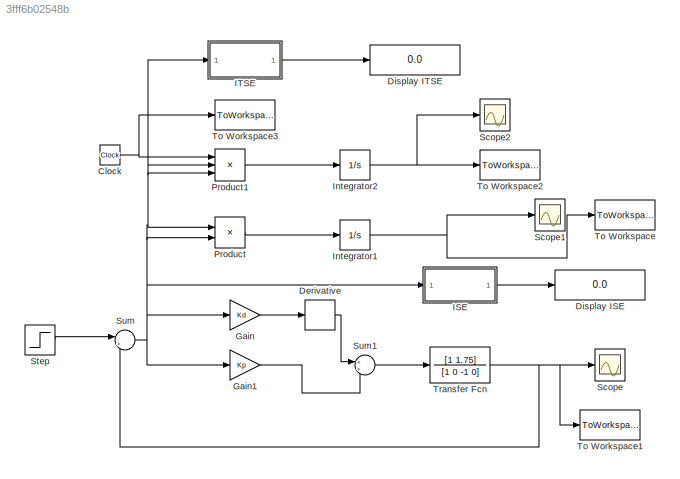
MODEL slx_3fff6b02548b
KIND model
BLOCK [Clock] Clock
BLOCK [Derivative] Derivative
BLOCK [Display] Display ISE
  Decimation = 1
  Lockdown = off
  Ports = [1]
BLOCK [Display] Display ITSE
  Decimation = 1
  Lockdown = off
  Ports = [1]
BLOCK [Gain] Gain
  Gain = Kd
  OutDataTypeStr = Inherit: Inherit via internal rule
  ParamDataTypeStr = Inherit: Inherit via internal rule
  SaturateOnIntegerOverflow = off
BLOCK [Gain] Gain1
  Gain = Kp
  OutDataTypeStr = Inherit: Inherit via internal rule
  ParamDataTypeStr = Inherit: Inherit via internal rule
  SaturateOnIntegerOverflow = off
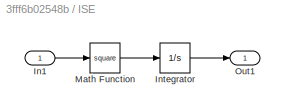
BLOCK [SubSystem] ISE
  FunctionWithSeparateData = off
  MaskHideContents = off
  MinAlgLoopOccurrences = off
  Opaque = off
  Ports = [1, 1]
  PropExecContextOutsideSubsystem = off
  RTWSystemCode = Auto
  RequestExecContextInheritance = off
BLOCK [Inport] ISE/In1
  IconDisplay = Port number
BLOCK [Integrator] ISE/Integrator
  Ports = [1, 1]
BLOCK [Math] ISE/Math Function
  Operator = square
  Ports = [1, 1]
BLOCK [Outport] ISE/Out1
  IconDisplay = Port number
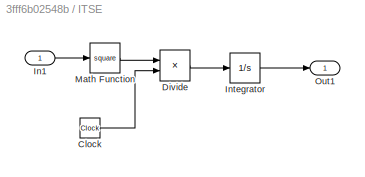
BLOCK [SubSystem] ITSE
  FunctionWithSeparateData = off
  MaskHideContents = off
  MinAlgLoopOccurrences = off
  Opaque = off
  Ports = [1, 1]
  PropExecContextOutsideSubsystem = off
  RTWSystemCode = Auto
  RequestExecContextInheritance = off
BLOCK [Clock] ITSE/Clock
BLOCK [Product] ITSE/Divide
  InputSameDT = off
  Inputs = **
  OutDataTypeStr = Inherit: Inherit via internal rule
  Ports = [2, 1]
  RndMeth = Floor
  SaturateOnIntegerOverflow = off
BLOCK [Inport] ITSE/In1
  IconDisplay = Port number
BLOCK [Integrator] ITSE/Integrator
  Ports = [1, 1]
BLOCK [Math] ITSE/Math Function
  Operator = square
  Ports = [1, 1]
BLOCK [Outport] ITSE/Out1
  IconDisplay = Port number
BLOCK [Integrator] Integrator1
  Ports = [1, 1]
BLOCK [Integrator] Integrator2
  Ports = [1, 1]
BLOCK [Product] Product
  InputSameDT = off
  OutDataTypeStr = Inherit: Inherit via internal rule
  Ports = [2, 1]
  RndMeth = Floor
  SaturateOnIntegerOverflow = off
BLOCK [Product] Product1
  InputSameDT = off
  Inputs = 3
  OutDataTypeStr = Inherit: Inherit via internal rule
  Ports = [3, 1]
  RndMeth = Floor
  SaturateOnIntegerOverflow = off
BLOCK [Scope] Scope
  DataFormat = StructureWithTime
  Floating = off
  NumInputPorts = 1
  Ports = [1]
  SampleTime = 0
  ShowLegends = off
BLOCK [Scope] Scope1
  DataFormat = StructureWithTime
  Floating = off
  NumInputPorts = 1
  Ports = [1]
  SampleTime = 0
  SaveName = ScopeData1
  ShowLegends = off
BLOCK [Scope] Scope2
  DataFormat = StructureWithTime
  Floating = off
  NumInputPorts = 1
  Ports = [1]
  SampleTime = 0
  SaveName = ScopeData2
  ShowLegends = off
BLOCK [Step] Step
  SampleTime = 0
BLOCK [Sum] Sum
  IconShape = round
  InputSameDT = off
  Inputs = |+-
  OutDataTypeStr = Inherit: Inherit via internal rule
  Ports = [2, 1]
  SaturateOnIntegerOverflow = off
BLOCK [Sum] Sum1
  IconShape = round
  InputSameDT = off
  OutDataTypeStr = Inherit: Inherit via internal rule
  Ports = [2, 1]
  SaturateOnIntegerOverflow = off
BLOCK [ToWorkspace] To Workspace
  MaxDataPoints = inf
  Ports = [1]
  SampleTime = -1
  VariableName = ise
BLOCK [ToWorkspace] To Workspace1
  MaxDataPoints = inf
  Ports = [1]
  SampleTime = -1
  SaveFormat = Timeseries
  VariableName = y
BLOCK [ToWorkspace] To Workspace2
  MaxDataPoints = inf
  Ports = [1]
  SampleTime = -1
  VariableName = itse
BLOCK [ToWorkspace] To Workspace3
  MaxDataPoints = inf
  Ports = [1]
  SampleTime = -1
  SaveFormat = Timeseries
  VariableName = time
BLOCK [TransferFcn] Transfer Fcn
  Denominator = [1 0 -1 0]
  Numerator = [1 1.75]
NET Clock:1 -> Product1:1, To Workspace3:1
LINE Derivative:1 -> Sum1:1
LINE Gain1:1 -> Sum1:2
LINE Gain:1 -> Derivative:1
LINE ISE/In1:1 -> ISE/Math Function:1
LINE ISE/Integrator:1 -> ISE/Out1:1
LINE ISE/Math Function:1 -> ISE/Integrator:1
LINE ISE:1 -> Display ISE:1
LINE ITSE/Clock:1 -> ITSE/Divide:2
LINE ITSE/Divide:1 -> ITSE/Integrator:1
LINE ITSE/In1:1 -> ITSE/Math Function:1
LINE ITSE/Integrator:1 -> ITSE/Out1:1
LINE ITSE/Math Function:1 -> ITSE/Divide:1
LINE ITSE:1 -> Display ITSE:1
NET Integrator1:1 -> Scope1:1, To Workspace:1
NET Integrator2:1 -> Scope2:1, To Workspace2:1
LINE Product1:1 -> Integrator2:1
LINE Product:1 -> Integrator1:1
LINE Step:1 -> Sum:1
LINE Sum1:1 -> Transfer Fcn:1
NET Sum:1 -> Gain1:1, Gain:1, ISE:1, ITSE:1, Product1:2, Product1:3, Product:1, Product:2
NET Transfer Fcn:1 -> Scope:1, Sum:2, To Workspace1:1
note: NET lines group one-source signal fan-out (src -> all destinations, sorted); 1:1 wires keep LINE
